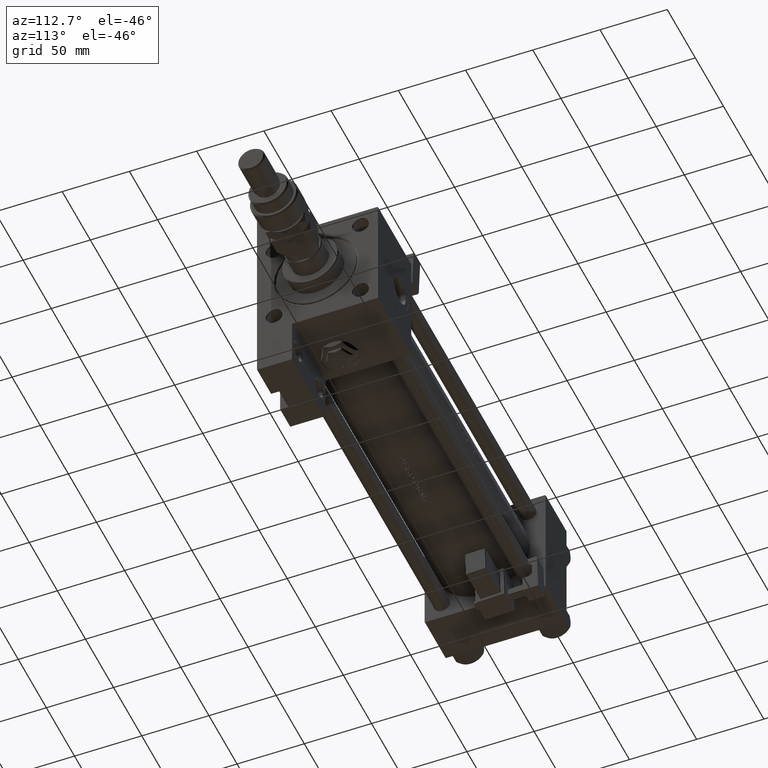
[diagram: clean part render]
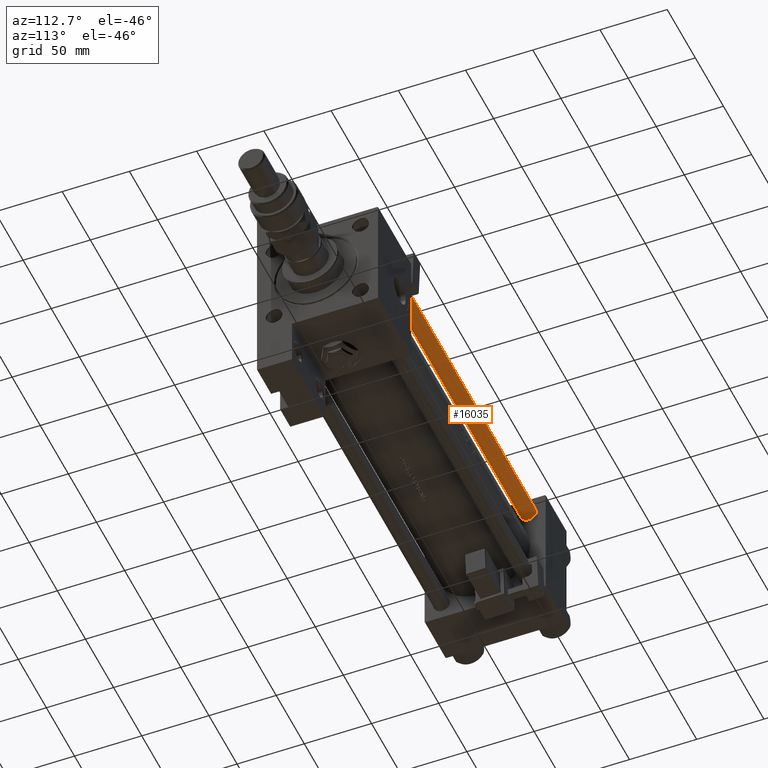
[diagram: same view with one face highlighted and labeled with its STEP entity id]
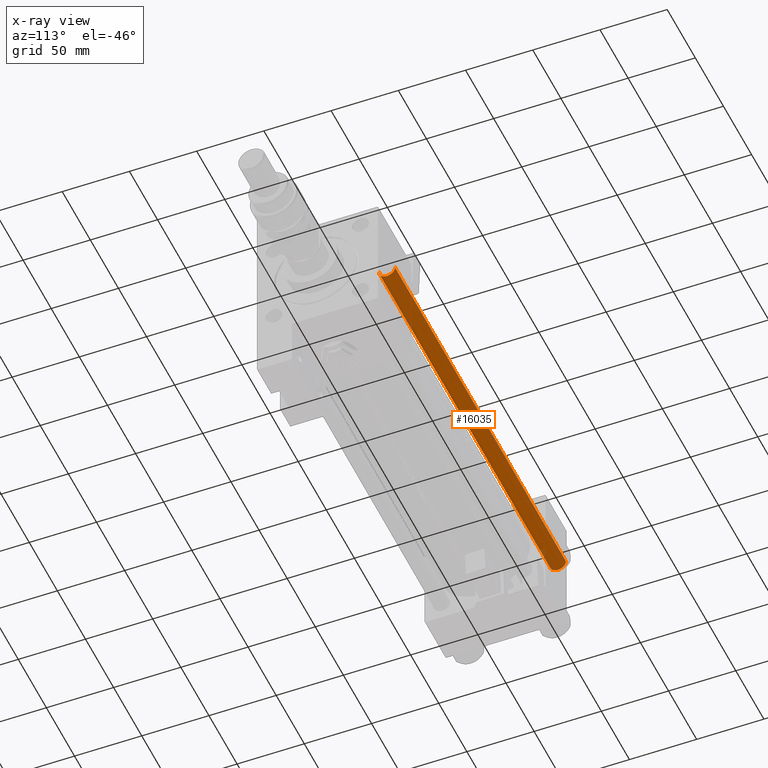
[diagram: x-ray of the same camera — body ghosted, the highlighted face saturated]
A machine part, auxiliary view. The second image highlights one B-rep face of the part: STEP entity #16035.
The next image is the same camera in x-ray: the body ghosted, the highlighted face saturated — about 6% of this face is hidden behind the body in this view.
In plain terms, the highlighted cylindrical surface (edge-blend (fillet) strip) has radius 6 mm, axis along (1, -0, 0).
Its self-contained STEP definition (entity closure, byte-faithful):
#1093 = CYLINDRICAL_SURFACE ( 'NONE', #21629, 6.000000000000000888 ) ;
#1722 = LINE ( 'NONE', #40596, #24269 ) ;
#3331 = CIRCLE ( 'NONE', #28907, 6.000000000000000888 ) ;
#3433 = ORIENTED_EDGE ( 'NONE', *, *, #37284, .T. ) ;
#5925 = CARTESIAN_POINT ( 'NONE',  ( 0.000000000000000000, 0.000000000000000000, 304.5000000000000000 ) ) ;
#7067 = VERTEX_POINT ( 'NONE', #46702 ) ;
#8290 = LINE ( 'NONE', #11888, #33200 ) ;
#11888 = CARTESIAN_POINT ( 'NONE',  ( 6.000000000000000888, 7.347880794884120722E-16, 305.0000000000000000 ) ) ;
#12722 = CARTESIAN_POINT ( 'NONE',  ( -6.000000000000000888, 0.000000000000000000, 304.5000000000000000 ) ) ;
#13395 = DIRECTION ( 'NONE',  ( 1.000000000000000000, 0.000000000000000000, 0.000000000000000000 ) ) ;
#13613 = DIRECTION ( 'NONE',  ( -0.000000000000000000, -0.000000000000000000, 1.000000000000000000 ) ) ;
#14417 = VERTEX_POINT ( 'NONE', #33110 ) ;
#15305 = AXIS2_PLACEMENT_3D ( 'NONE', #5925, #18070, #13395 ) ;
#16035 = ADVANCED_FACE ( 'NONE', ( #21804 ), #1093, .T. ) ;
#16184 = CIRCLE ( 'NONE', #15305, 6.000000000000000888 ) ;
#16507 = ORIENTED_EDGE ( 'NONE', *, *, #22438, .T. ) ;
#18070 = DIRECTION ( 'NONE',  ( 0.000000000000000000, 0.000000000000000000, -1.000000000000000000 ) ) ;
#18293 = EDGE_CURVE ( 'NONE', #24531, #7067, #1722, .T. ) ;
#20187 = DIRECTION ( 'NONE',  ( -0.000000000000000000, -0.000000000000000000, -1.000000000000000000 ) ) ;
#21629 = AXIS2_PLACEMENT_3D ( 'NONE', #25660, #46583, #30076 ) ;
#21804 = FACE_OUTER_BOUND ( 'NONE', #40037, .T. ) ;
#22438 = EDGE_CURVE ( 'NONE', #37914, #14417, #8290, .T. ) ;
#24269 = VECTOR ( 'NONE', #52143, 1000.000000000000000 ) ;
#24390 = EDGE_CURVE ( 'NONE', #14417, #7067, #3331, .T. ) ;
#24531 = VERTEX_POINT ( 'NONE', #12722 ) ;
#25413 = ORIENTED_EDGE ( 'NONE', *, *, #18293, .F. ) ;
#25660 = CARTESIAN_POINT ( 'NONE',  ( 0.000000000000000000, 0.000000000000000000, 305.0000000000000000 ) ) ;
#27399 = CARTESIAN_POINT ( 'NONE',  ( 0.000000000000000000, 0.000000000000000000, 0.5000000000000004441 ) ) ;
#28907 = AXIS2_PLACEMENT_3D ( 'NONE', #27399, #13613, #53248 ) ;
#30076 = DIRECTION ( 'NONE',  ( -1.000000000000000000, 0.000000000000000000, 0.000000000000000000 ) ) ;
#33110 = CARTESIAN_POINT ( 'NONE',  ( 6.000000000000000888, 7.347880794884120722E-16, 0.5000000000000004441 ) ) ;
#33200 = VECTOR ( 'NONE', #20187, 1000.000000000000000 ) ;
#34267 = ORIENTED_EDGE ( 'NONE', *, *, #24390, .T. ) ;
#37284 = EDGE_CURVE ( 'NONE', #24531, #37914, #16184, .T. ) ;
#37745 = CARTESIAN_POINT ( 'NONE',  ( 6.000000000000000888, 7.347880794884120722E-16, 304.5000000000000000 ) ) ;
#37914 = VERTEX_POINT ( 'NONE', #37745 ) ;
#40037 = EDGE_LOOP ( 'NONE', ( #3433, #16507, #34267, #25413 ) ) ;
#40596 = CARTESIAN_POINT ( 'NONE',  ( -6.000000000000000888, 0.000000000000000000, 305.0000000000000000 ) ) ;
#46583 = DIRECTION ( 'NONE',  ( -0.000000000000000000, -0.000000000000000000, -1.000000000000000000 ) ) ;
#46702 = CARTESIAN_POINT ( 'NONE',  ( -6.000000000000000888, 0.000000000000000000, 0.5000000000000004441 ) ) ;
#52143 = DIRECTION ( 'NONE',  ( -0.000000000000000000, -0.000000000000000000, -1.000000000000000000 ) ) ;
#53248 = DIRECTION ( 'NONE',  ( 1.000000000000000000, 0.000000000000000000, 0.000000000000000000 ) ) ;